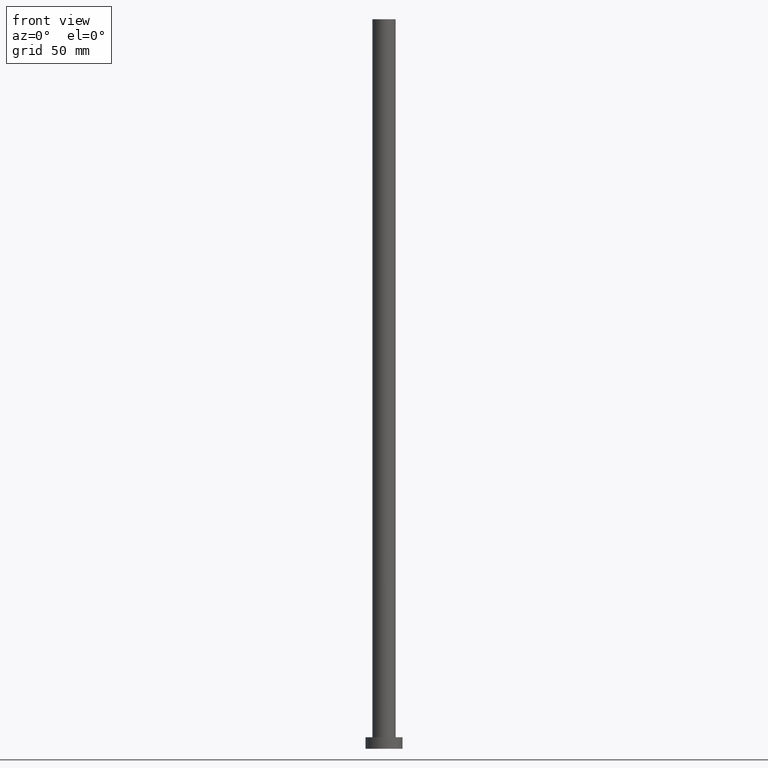
[diagram: clean part render]
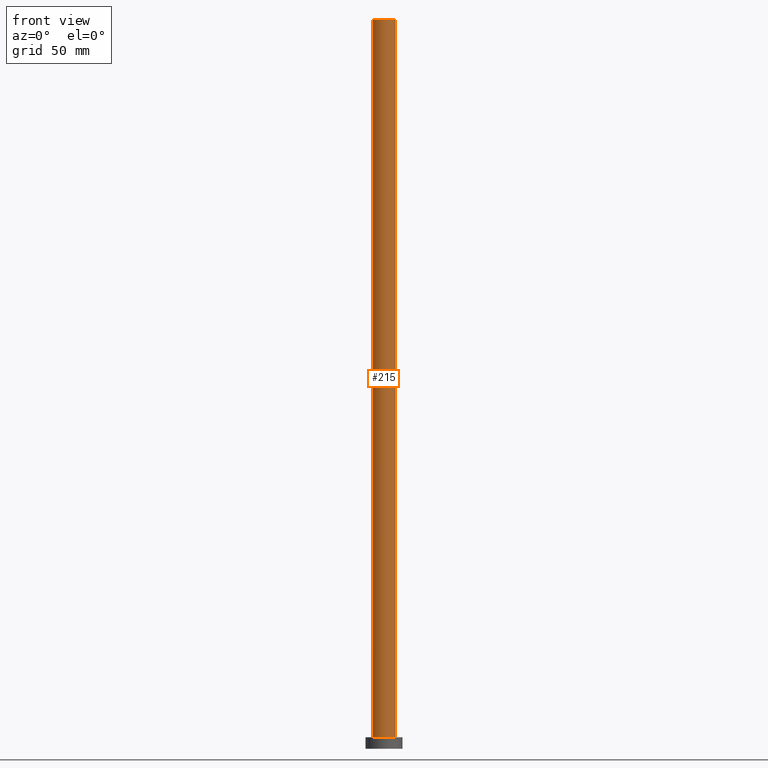
[diagram: same view with one face highlighted and labeled with its STEP entity id]
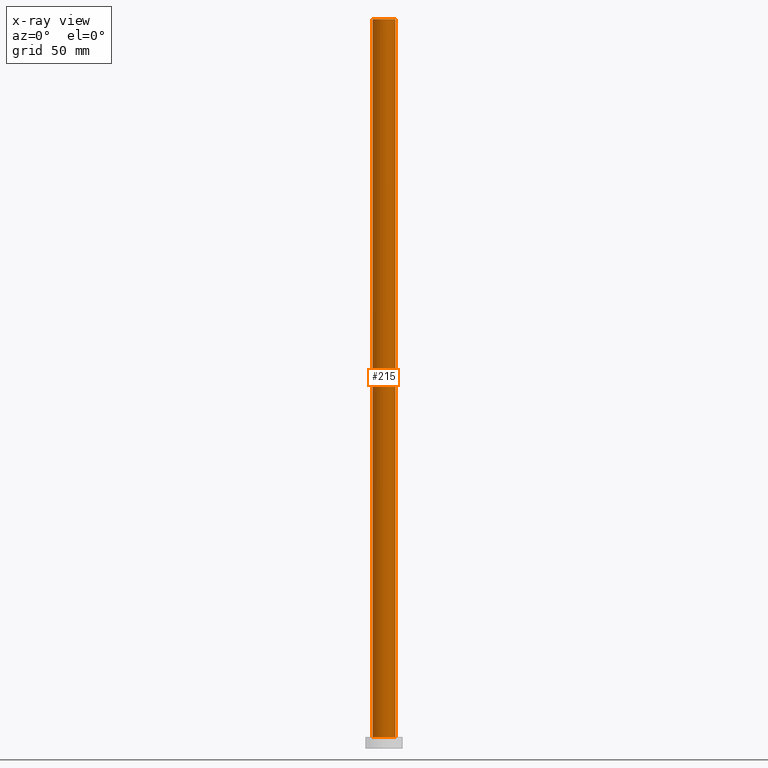
[diagram: x-ray of the same camera — body ghosted, the highlighted face saturated]
A machine part, front view. The second image highlights one B-rep face of the part: STEP entity #215.
The next image is the same camera in x-ray: the body ghosted, the highlighted face saturated — about 0% of this face is hidden behind the body in this view.
In plain terms, the highlighted cylindrical surface (edge-blend (fillet) strip) has radius 5 mm, axis along (-0, -0, -1).
Its self-contained STEP definition (entity closure, byte-faithful):
#4 = VECTOR ( 'NONE', #229, 1000.000000000000000 ) ;
#6 = ORIENTED_EDGE ( 'NONE', *, *, #124, .F. ) ;
#28 = EDGE_CURVE ( 'NONE', #187, #115, #42, .T. ) ;
#34 = ORIENTED_EDGE ( 'NONE', *, *, #136, .T. ) ;
#35 = DIRECTION ( 'NONE',  ( 0.000000000000000000, 0.000000000000000000, 1.000000000000000000 ) ) ;
#37 = CIRCLE ( 'NONE', #41, 5.000000000000000000 ) ;
#38 = VECTOR ( 'NONE', #186, 1000.000000000000000 ) ;
#41 = AXIS2_PLACEMENT_3D ( 'NONE', #79, #35, #228 ) ;
#42 = LINE ( 'NONE', #61, #4 ) ;
#43 = CARTESIAN_POINT ( 'NONE',  ( 5.000000000000000000, 6.123233995736766282E-16, 5.000000000000000000 ) ) ;
#47 = CARTESIAN_POINT ( 'NONE',  ( -5.000000000000000000, 0.000000000000000000, 315.0000000000000000 ) ) ;
#51 = EDGE_LOOP ( 'NONE', ( #198, #6, #34, #88 ) ) ;
#61 = CARTESIAN_POINT ( 'NONE',  ( 5.000000000000000000, 6.123233995736766282E-16, 315.0000000000000000 ) ) ;
#62 = CARTESIAN_POINT ( 'NONE',  ( 0.000000000000000000, 0.000000000000000000, 315.0000000000000000 ) ) ;
#74 = FACE_OUTER_BOUND ( 'NONE', #51, .T. ) ;
#79 = CARTESIAN_POINT ( 'NONE',  ( 0.000000000000000000, 0.000000000000000000, 5.000000000000000000 ) ) ;
#82 = CARTESIAN_POINT ( 'NONE',  ( 0.000000000000000000, 0.000000000000000000, 315.0000000000000000 ) ) ;
#88 = ORIENTED_EDGE ( 'NONE', *, *, #190, .T. ) ;
#96 = CYLINDRICAL_SURFACE ( 'NONE', #154, 5.000000000000000000 ) ;
#99 = DIRECTION ( 'NONE',  ( 0.000000000000000000, 0.000000000000000000, 1.000000000000000000 ) ) ;
#104 = CARTESIAN_POINT ( 'NONE',  ( 5.000000000000000000, 6.123233995736766282E-16, 315.0000000000000000 ) ) ;
#105 = VERTEX_POINT ( 'NONE', #163 ) ;
#115 = VERTEX_POINT ( 'NONE', #43 ) ;
#119 = CARTESIAN_POINT ( 'NONE',  ( -5.000000000000000000, 0.000000000000000000, 315.0000000000000000 ) ) ;
#124 = EDGE_CURVE ( 'NONE', #125, #187, #197, .T. ) ;
#125 = VERTEX_POINT ( 'NONE', #119 ) ;
#126 = AXIS2_PLACEMENT_3D ( 'NONE', #62, #99, #155 ) ;
#136 = EDGE_CURVE ( 'NONE', #125, #105, #144, .T. ) ;
#144 = LINE ( 'NONE', #47, #38 ) ;
#154 = AXIS2_PLACEMENT_3D ( 'NONE', #82, #158, #168 ) ;
#155 = DIRECTION ( 'NONE',  ( 1.000000000000000000, 0.000000000000000000, 0.000000000000000000 ) ) ;
#158 = DIRECTION ( 'NONE',  ( -0.000000000000000000, -0.000000000000000000, -1.000000000000000000 ) ) ;
#163 = CARTESIAN_POINT ( 'NONE',  ( -5.000000000000000000, 0.000000000000000000, 5.000000000000000000 ) ) ;
#168 = DIRECTION ( 'NONE',  ( -1.000000000000000000, 0.000000000000000000, 0.000000000000000000 ) ) ;
#186 = DIRECTION ( 'NONE',  ( -0.000000000000000000, -0.000000000000000000, -1.000000000000000000 ) ) ;
#187 = VERTEX_POINT ( 'NONE', #104 ) ;
#190 = EDGE_CURVE ( 'NONE', #105, #115, #37, .T. ) ;
#197 = CIRCLE ( 'NONE', #126, 5.000000000000000000 ) ;
#198 = ORIENTED_EDGE ( 'NONE', *, *, #28, .F. ) ;
#215 = ADVANCED_FACE ( 'NONE', ( #74 ), #96, .T. ) ;
#228 = DIRECTION ( 'NONE',  ( 1.000000000000000000, 0.000000000000000000, 0.000000000000000000 ) ) ;
#229 = DIRECTION ( 'NONE',  ( -0.000000000000000000, -0.000000000000000000, -1.000000000000000000 ) ) ;